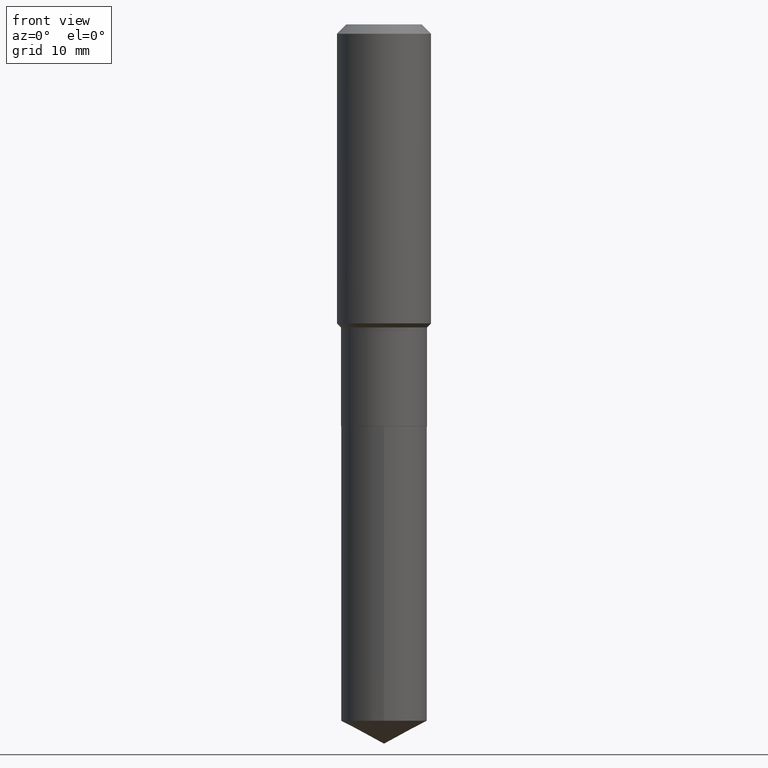
[diagram: clean part render]
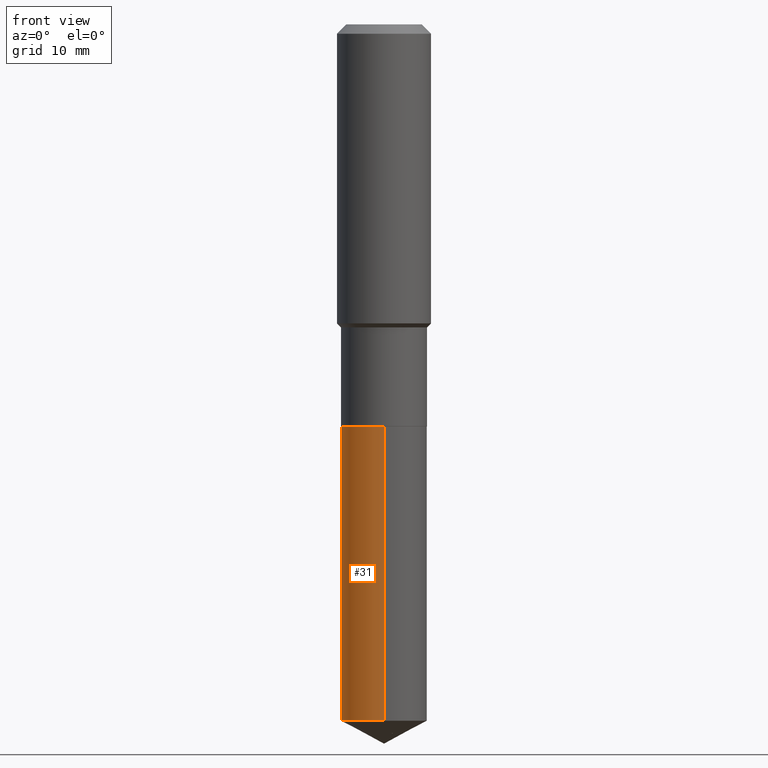
[diagram: same view with one face highlighted and labeled with its STEP entity id]
A machine part, front view. The second image highlights one B-rep face of the part: STEP entity #31.
In plain terms, the highlighted cylindrical surface (partial cylindrical patch) has radius 6.3995 mm, axis along (-0, 0, 1).
Its self-contained STEP definition (entity closure, byte-faithful):
#18 = VERTEX_POINT ( 'NONE', #71 ) ;
#24 = VERTEX_POINT ( 'NONE', #347 ) ;
#28 = DIRECTION ( 'NONE',  ( -6.982962677686265922E-15, -1.000000000000000000, 4.337127197720600657E-15 ) ) ;
#31 = ADVANCED_FACE ( 'NONE', ( #190 ), #237, .T. ) ;
#34 = ORIENTED_EDGE ( 'NONE', *, *, #323, .F. ) ;
#35 = DIRECTION ( 'NONE',  ( -6.982962677686265922E-15, -1.000000000000000000, 3.252845398290450098E-15 ) ) ;
#47 = DIRECTION ( 'NONE',  ( -2.445089197261036539E-29, 3.492024960428454996E-15, 1.000000000000000000 ) ) ;
#57 = CARTESIAN_POINT ( 'NONE',  ( 1.790212422747629662E-15, 0.2519499999999917361, -2.354300000000001170 ) ) ;
#67 = DIRECTION ( 'NONE',  ( -2.445089197261036539E-29, 3.492024960428454996E-15, 1.000000000000000000 ) ) ;
#71 = CARTESIAN_POINT ( 'NONE',  ( 1.790212422747671867E-15, 0.2519499999999857409, -4.078635808692893328 ) ) ;
#77 = EDGE_LOOP ( 'NONE', ( #34, #336, #470, #302 ) ) ;
#78 = EDGE_CURVE ( 'NONE', #18, #261, #345, .T. ) ;
#162 = AXIS2_PLACEMENT_3D ( 'NONE', #217, #67, #28 ) ;
#183 = CARTESIAN_POINT ( 'NONE',  ( -1.759357446642997213E-15, -0.2519500000000082229, -2.354299999999999393 ) ) ;
#190 = FACE_OUTER_BOUND ( 'NONE', #77, .T. ) ;
#209 = DIRECTION ( 'NONE',  ( -2.445089197261036539E-29, 3.492024960428455391E-15, 1.000000000000000000 ) ) ;
#216 = LINE ( 'NONE', #57, #338 ) ;
#217 = CARTESIAN_POINT ( 'NONE',  ( 9.973522068687030357E-29, -1.424141820015458017E-14, -4.078635808692891551 ) ) ;
#237 = CYLINDRICAL_SURFACE ( 'NONE', #481, 0.2519500000000000073 ) ;
#250 = CARTESIAN_POINT ( 'NONE',  ( 1.790212422747672261E-15, 0.2519499999999917361, -2.354300000000001170 ) ) ;
#261 = VERTEX_POINT ( 'NONE', #412 ) ;
#281 = EDGE_CURVE ( 'NONE', #315, #24, #322, .T. ) ;
#302 = ORIENTED_EDGE ( 'NONE', *, *, #281, .F. ) ;
#315 = VERTEX_POINT ( 'NONE', #250 ) ;
#322 = CIRCLE ( 'NONE', #376, 0.2519500000000000073 ) ;
#323 = EDGE_CURVE ( 'NONE', #18, #315, #216, .T. ) ;
#335 = DIRECTION ( 'NONE',  ( -2.445089197261036539E-29, 3.492024960428455391E-15, 1.000000000000000000 ) ) ;
#336 = ORIENTED_EDGE ( 'NONE', *, *, #78, .T. ) ;
#338 = VECTOR ( 'NONE', #209, 39.37007874015748143 ) ;
#341 = DIRECTION ( 'NONE',  ( -6.982962677686265922E-15, -1.000000000000000000, 3.252845398290450098E-15 ) ) ;
#345 = CIRCLE ( 'NONE', #162, 0.2519500000000000073 ) ;
#347 = CARTESIAN_POINT ( 'NONE',  ( -1.759357446642997213E-15, -0.2519500000000082229, -2.354299999999999393 ) ) ;
#368 = DIRECTION ( 'NONE',  ( -2.445089197261036539E-29, 3.492024960428454996E-15, 1.000000000000000000 ) ) ;
#376 = AXIS2_PLACEMENT_3D ( 'NONE', #452, #368, #35 ) ;
#382 = CARTESIAN_POINT ( 'NONE',  ( 5.757367210401668198E-29, -8.219994516038419081E-15, -2.354300000000000281 ) ) ;
#406 = LINE ( 'NONE', #183, #474 ) ;
#412 = CARTESIAN_POINT ( 'NONE',  ( -1.759357446642955206E-15, -0.2519500000000142181, -4.078635808692890663 ) ) ;
#440 = EDGE_CURVE ( 'NONE', #261, #24, #406, .T. ) ;
#452 = CARTESIAN_POINT ( 'NONE',  ( 5.757367210401668198E-29, -8.219994516038419081E-15, -2.354300000000000281 ) ) ;
#470 = ORIENTED_EDGE ( 'NONE', *, *, #440, .T. ) ;
#474 = VECTOR ( 'NONE', #335, 39.37007874015748143 ) ;
#481 = AXIS2_PLACEMENT_3D ( 'NONE', #382, #47, #341 ) ;